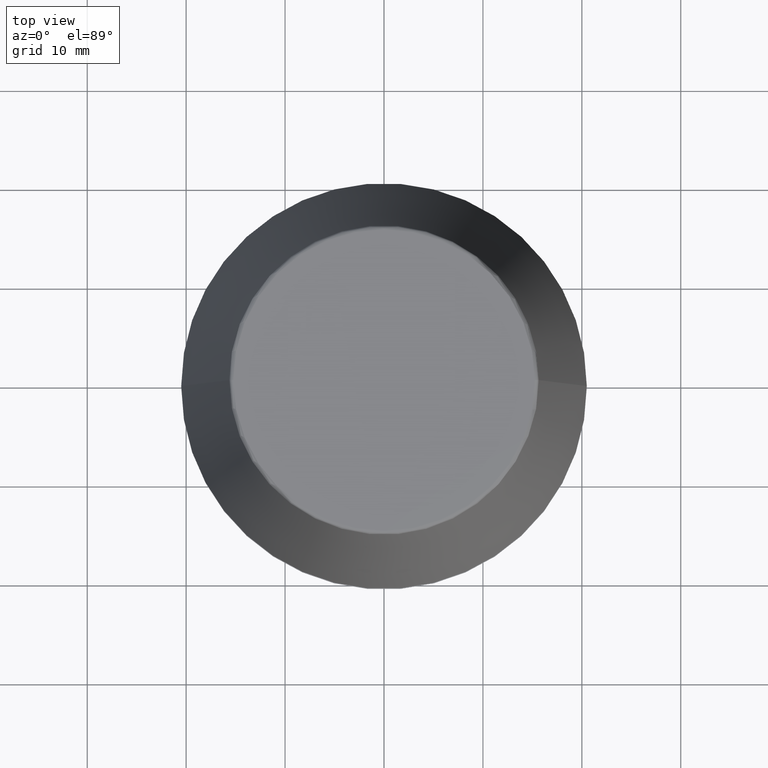
[diagram: clean part render]
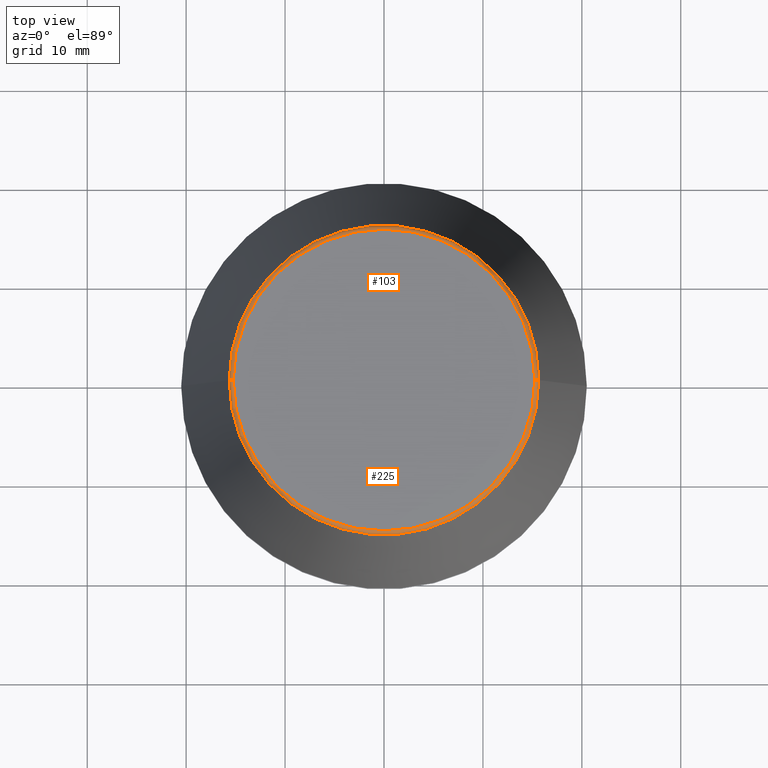
[diagram: same view with one multi-face feature highlighted, each face labeled with its STEP entity id]
A machine part, top view. The highlighted faces form ONE feature: a constant-radius fillet chain: 2 tangent blend faces with common blend radius 0.4 mm. The faces share edges in the B-rep.
Their STEP definitions:
[1] entity #225 (Torus):
#1 = DIRECTION ( 'NONE',  ( 1.000000000000000000, 0.0000000000000000000, 0.0000000000000000000 ) ) ;
#7 = EDGE_CURVE ( 'NONE', #333, #109, #367, .T. ) ;
#21 = ORIENTED_EDGE ( 'NONE', *, *, #53, .T. ) ;
#28 = TOROIDAL_SURFACE ( 'NONE', #143, 15.24773554530077600, 0.3999999999999991900 ) ;
#31 = FACE_OUTER_BOUND ( 'NONE', #61, .T. ) ;
#53 = EDGE_CURVE ( 'NONE', #109, #356, #163, .T. ) ;
#61 = EDGE_LOOP ( 'NONE', ( #116, #218, #21, #213 ) ) ;
#78 = AXIS2_PLACEMENT_3D ( 'NONE', #294, #130, #325 ) ;
#88 = CARTESIAN_POINT ( 'NONE',  ( 0.0000000000000000000, 0.0000000000000000000, 46.00000000000000000 ) ) ;
#109 = VERTEX_POINT ( 'NONE', #378 ) ;
#115 = DIRECTION ( 'NONE',  ( 1.000000000000000000, 0.0000000000000000000, 0.0000000000000000000 ) ) ;
#116 = ORIENTED_EDGE ( 'NONE', *, *, #216, .F. ) ;
#117 = AXIS2_PLACEMENT_3D ( 'NONE', #88, #283, #115 ) ;
#119 = CIRCLE ( 'NONE', #78, 0.3999999999999975800 ) ;
#121 = CARTESIAN_POINT ( 'NONE',  ( 0.0000000000000000000, 0.0000000000000000000, 45.65566924038402900 ) ) ;
#130 = DIRECTION ( 'NONE',  ( 1.224646799147353200E-016, 1.000000000000000000, 0.0000000000000000000 ) ) ;
#142 = EDGE_CURVE ( 'NONE', #332, #356, #145, .T. ) ;
#143 = AXIS2_PLACEMENT_3D ( 'NONE', #241, #207, #262 ) ;
#144 = DIRECTION ( 'NONE',  ( 0.0000000000000000000, -1.000000000000000000, 0.0000000000000000000 ) ) ;
#145 = CIRCLE ( 'NONE', #117, 15.24773554530077600 ) ;
#163 = CIRCLE ( 'NONE', #233, 0.3999999999999975800 ) ;
#207 = DIRECTION ( 'NONE',  ( -0.0000000000000000000, -0.0000000000000000000, 1.000000000000000000 ) ) ;
#213 = ORIENTED_EDGE ( 'NONE', *, *, #142, .F. ) ;
#216 = EDGE_CURVE ( 'NONE', #333, #332, #119, .T. ) ;
#218 = ORIENTED_EDGE ( 'NONE', *, *, #7, .T. ) ;
#225 = ADVANCED_FACE ( 'NONE', ( #31 ), #28, .T. ) ;
#233 = AXIS2_PLACEMENT_3D ( 'NONE', #311, #144, #340 ) ;
#241 = CARTESIAN_POINT ( 'NONE',  ( 0.0000000000000000000, 0.0000000000000000000, 45.60000000000000100 ) ) ;
#262 = DIRECTION ( 'NONE',  ( 1.000000000000000000, 0.0000000000000000000, 0.0000000000000000000 ) ) ;
#274 = CARTESIAN_POINT ( 'NONE',  ( -15.24773554530077600, 1.891563625393435400E-015, 46.00000000000000000 ) ) ;
#283 = DIRECTION ( 'NONE',  ( -0.0000000000000000000, -0.0000000000000000000, 1.000000000000000000 ) ) ;
#286 = DIRECTION ( 'NONE',  ( -0.0000000000000000000, -0.0000000000000000000, 1.000000000000000000 ) ) ;
#294 = CARTESIAN_POINT ( 'NONE',  ( -15.24773554530077600, 1.867309052979791600E-015, 45.60000000000000100 ) ) ;
#307 = CARTESIAN_POINT ( 'NONE',  ( -15.64384277279740400, 0.0000000000000000000, 45.65566924038402900 ) ) ;
#311 = CARTESIAN_POINT ( 'NONE',  ( 15.24773554530077600, 0.0000000000000000000, 45.60000000000000100 ) ) ;
#317 = AXIS2_PLACEMENT_3D ( 'NONE', #121, #286, #1 ) ;
#325 = DIRECTION ( 'NONE',  ( -1.000000000000000000, 1.224646799147353900E-016, 0.0000000000000000000 ) ) ;
#332 = VERTEX_POINT ( 'NONE', #274 ) ;
#333 = VERTEX_POINT ( 'NONE', #307 ) ;
#340 = DIRECTION ( 'NONE',  ( 0.0000000000000000000, 0.0000000000000000000, -1.000000000000000000 ) ) ;
#356 = VERTEX_POINT ( 'NONE', #371 ) ;
#367 = CIRCLE ( 'NONE', #317, 15.64384277279740400 ) ;
#371 = CARTESIAN_POINT ( 'NONE',  ( 15.24773554530077600, 0.0000000000000000000, 46.00000000000000000 ) ) ;
#378 = CARTESIAN_POINT ( 'NONE',  ( 15.64384277279740400, 2.213191991290356800E-015, 45.65566924038402900 ) ) ;
[2] entity #103 (Torus):
#12 = EDGE_LOOP ( 'NONE', ( #285, #319, #337, #382 ) ) ;
#36 = FACE_OUTER_BOUND ( 'NONE', #12, .T. ) ;
#53 = EDGE_CURVE ( 'NONE', #109, #356, #163, .T. ) ;
#77 = CARTESIAN_POINT ( 'NONE',  ( 0.0000000000000000000, 0.0000000000000000000, 45.60000000000000100 ) ) ;
#78 = AXIS2_PLACEMENT_3D ( 'NONE', #294, #130, #325 ) ;
#103 = ADVANCED_FACE ( 'NONE', ( #36 ), #314, .T. ) ;
#107 = DIRECTION ( 'NONE',  ( -0.0000000000000000000, -0.0000000000000000000, 1.000000000000000000 ) ) ;
#108 = DIRECTION ( 'NONE',  ( -0.0000000000000000000, -0.0000000000000000000, 1.000000000000000000 ) ) ;
#109 = VERTEX_POINT ( 'NONE', #378 ) ;
#119 = CIRCLE ( 'NONE', #78, 0.3999999999999975800 ) ;
#130 = DIRECTION ( 'NONE',  ( 1.224646799147353200E-016, 1.000000000000000000, 0.0000000000000000000 ) ) ;
#144 = DIRECTION ( 'NONE',  ( 0.0000000000000000000, -1.000000000000000000, 0.0000000000000000000 ) ) ;
#163 = CIRCLE ( 'NONE', #233, 0.3999999999999975800 ) ;
#165 = AXIS2_PLACEMENT_3D ( 'NONE', #276, #259, #348 ) ;
#189 = EDGE_CURVE ( 'NONE', #109, #333, #334, .T. ) ;
#216 = EDGE_CURVE ( 'NONE', #333, #332, #119, .T. ) ;
#233 = AXIS2_PLACEMENT_3D ( 'NONE', #311, #144, #340 ) ;
#250 = AXIS2_PLACEMENT_3D ( 'NONE', #77, #108, #309 ) ;
#259 = DIRECTION ( 'NONE',  ( -0.0000000000000000000, -0.0000000000000000000, 1.000000000000000000 ) ) ;
#272 = CARTESIAN_POINT ( 'NONE',  ( 0.0000000000000000000, 0.0000000000000000000, 46.00000000000000000 ) ) ;
#274 = CARTESIAN_POINT ( 'NONE',  ( -15.24773554530077600, 1.891563625393435400E-015, 46.00000000000000000 ) ) ;
#276 = CARTESIAN_POINT ( 'NONE',  ( 0.0000000000000000000, 0.0000000000000000000, 45.65566924038402900 ) ) ;
#285 = ORIENTED_EDGE ( 'NONE', *, *, #189, .T. ) ;
#294 = CARTESIAN_POINT ( 'NONE',  ( -15.24773554530077600, 1.867309052979791600E-015, 45.60000000000000100 ) ) ;
#303 = DIRECTION ( 'NONE',  ( 1.000000000000000000, 0.0000000000000000000, 0.0000000000000000000 ) ) ;
#307 = CARTESIAN_POINT ( 'NONE',  ( -15.64384277279740400, 0.0000000000000000000, 45.65566924038402900 ) ) ;
#309 = DIRECTION ( 'NONE',  ( 1.000000000000000000, 0.0000000000000000000, 0.0000000000000000000 ) ) ;
#311 = CARTESIAN_POINT ( 'NONE',  ( 15.24773554530077600, 0.0000000000000000000, 45.60000000000000100 ) ) ;
#314 = TOROIDAL_SURFACE ( 'NONE', #250, 15.24773554530077600, 0.3999999999999991900 ) ;
#319 = ORIENTED_EDGE ( 'NONE', *, *, #216, .T. ) ;
#325 = DIRECTION ( 'NONE',  ( -1.000000000000000000, 1.224646799147353900E-016, 0.0000000000000000000 ) ) ;
#328 = EDGE_CURVE ( 'NONE', #356, #332, #330, .T. ) ;
#330 = CIRCLE ( 'NONE', #384, 15.24773554530077600 ) ;
#332 = VERTEX_POINT ( 'NONE', #274 ) ;
#333 = VERTEX_POINT ( 'NONE', #307 ) ;
#334 = CIRCLE ( 'NONE', #165, 15.64384277279740400 ) ;
#337 = ORIENTED_EDGE ( 'NONE', *, *, #328, .F. ) ;
#340 = DIRECTION ( 'NONE',  ( 0.0000000000000000000, 0.0000000000000000000, -1.000000000000000000 ) ) ;
#348 = DIRECTION ( 'NONE',  ( 1.000000000000000000, 0.0000000000000000000, 0.0000000000000000000 ) ) ;
#356 = VERTEX_POINT ( 'NONE', #371 ) ;
#371 = CARTESIAN_POINT ( 'NONE',  ( 15.24773554530077600, 0.0000000000000000000, 46.00000000000000000 ) ) ;
#378 = CARTESIAN_POINT ( 'NONE',  ( 15.64384277279740400, 2.213191991290356800E-015, 45.65566924038402900 ) ) ;
#382 = ORIENTED_EDGE ( 'NONE', *, *, #53, .F. ) ;
#384 = AXIS2_PLACEMENT_3D ( 'NONE', #272, #107, #303 ) ;